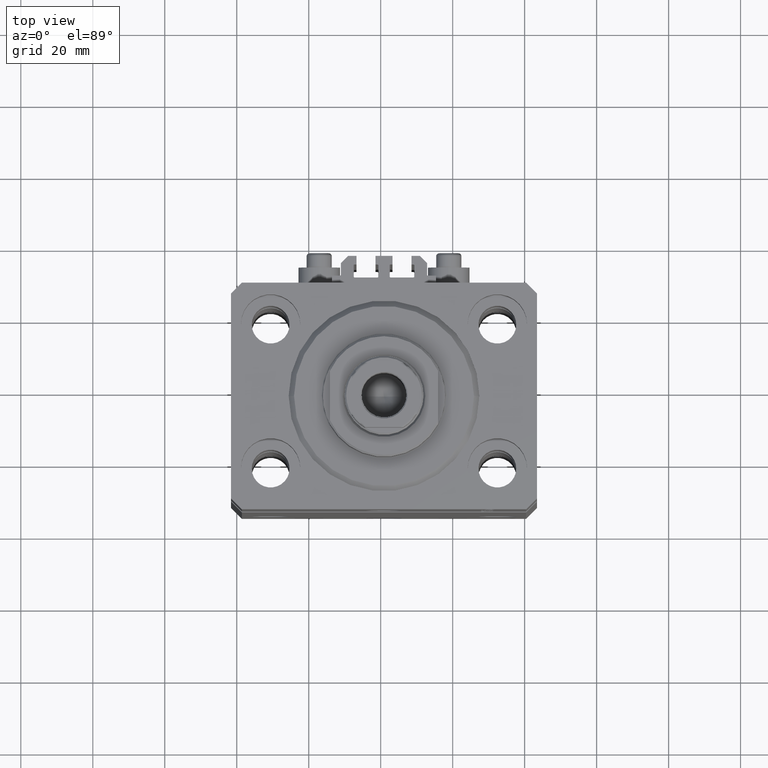
[diagram: clean part render]
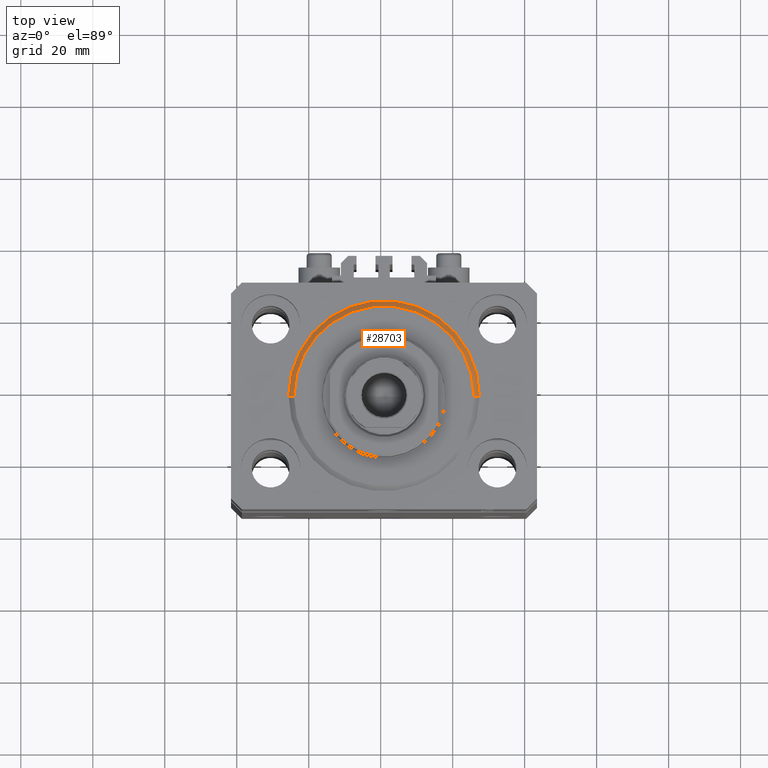
[diagram: same view with one face highlighted and labeled with its STEP entity id]
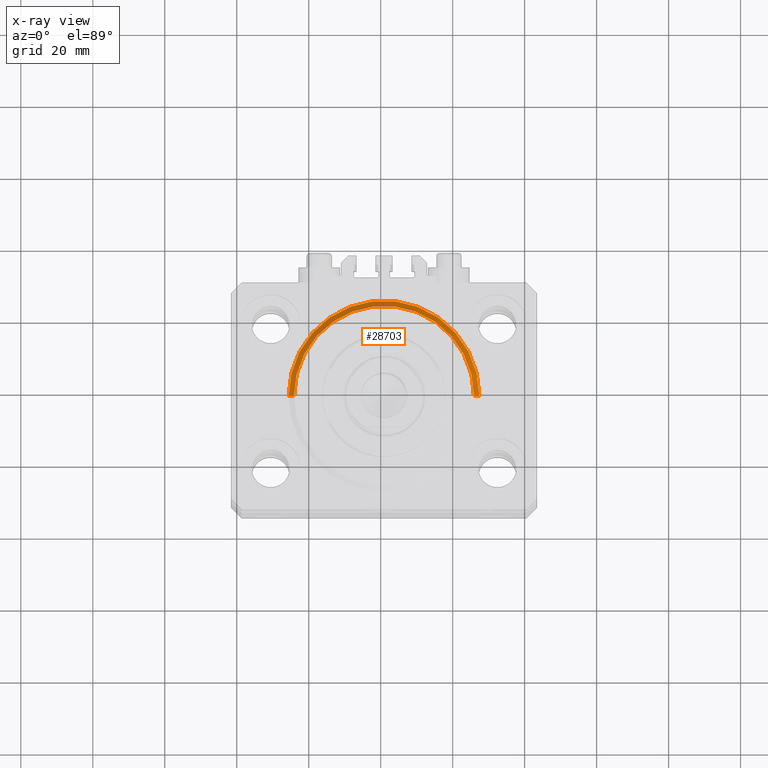
[diagram: x-ray of the same camera — body ghosted, the highlighted face saturated]
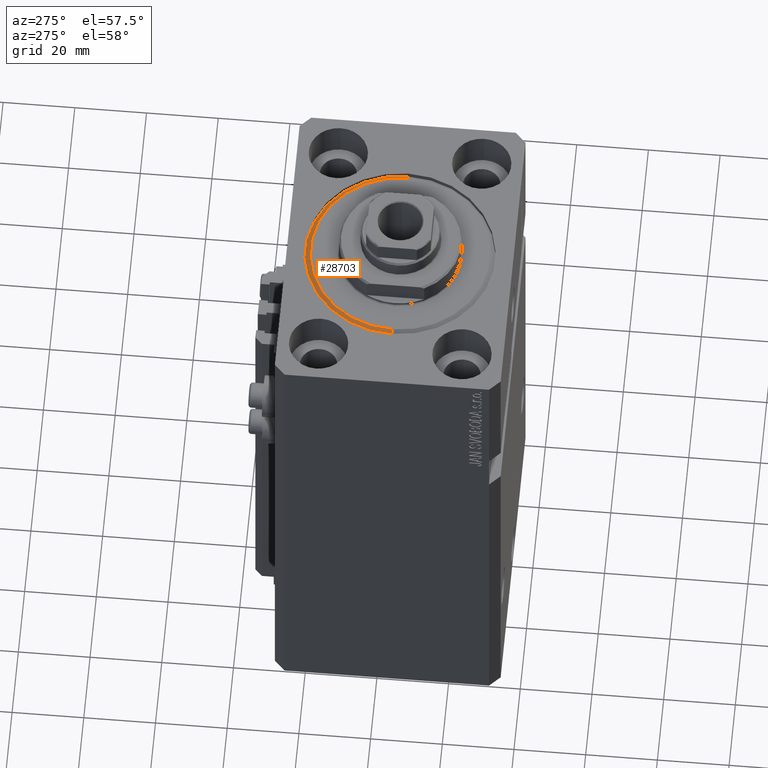
[diagram: same view with one face highlighted and labeled with its STEP entity id]
A machine part, top view. The second image highlights one B-rep face of the part: STEP entity #28703.
The next image is the same camera in x-ray: the body ghosted, the highlighted face saturated — about 0% of this face is hidden behind the body in this view.
A second angle (auxiliary view) of the same face is appended — the face is thin or edge-on in the first view.
In plain terms, the highlighted conical surface has half-angle 45 deg.
Its self-contained STEP definition (entity closure, byte-faithful):
#250 = CARTESIAN_POINT ( 'NONE',  ( 24.99999999999998224, 0.000000000000000000, 0.000000000000000000 ) ) ;
#376 = DIRECTION ( 'NONE',  ( -0.000000000000000000, -0.000000000000000000, 1.000000000000000000 ) ) ;
#675 = DIRECTION ( 'NONE',  ( 1.000000000000000000, 0.000000000000000000, 0.000000000000000000 ) ) ;
#3771 = DIRECTION ( 'NONE',  ( 1.000000000000000000, 0.000000000000000000, 0.000000000000000000 ) ) ;
#5955 = CARTESIAN_POINT ( 'NONE',  ( 26.50000000000000355, 3.245314017740486554E-15, 1.500000000000018652 ) ) ;
#6481 = CONICAL_SURFACE ( 'NONE', #35245, 26.50000000000000355, 0.7853981633974495002 ) ;
#6652 = AXIS2_PLACEMENT_3D ( 'NONE', #38151, #34496, #675 ) ;
#7325 = CIRCLE ( 'NONE', #43894, 26.50000000000000355 ) ;
#9260 = CARTESIAN_POINT ( 'NONE',  ( -26.50000000000000355, 0.000000000000000000, 1.500000000000018652 ) ) ;
#9722 = DIRECTION ( 'NONE',  ( 1.000000000000000000, 0.000000000000000000, 0.000000000000000000 ) ) ;
#10023 = EDGE_CURVE ( 'NONE', #29719, #40280, #44766, .T. ) ;
#10854 = LINE ( 'NONE', #29366, #15231 ) ;
#11211 = VERTEX_POINT ( 'NONE', #9260 ) ;
#14311 = CARTESIAN_POINT ( 'NONE',  ( 0.000000000000000000, 0.000000000000000000, 1.500000000000018652 ) ) ;
#14794 = DIRECTION ( 'NONE',  ( -0.7071067811865483499, 8.659560562354942719E-17, 0.7071067811865466846 ) ) ;
#15231 = VECTOR ( 'NONE', #25717, 1000.000000000000000 ) ;
#16851 = CARTESIAN_POINT ( 'NONE',  ( -24.99999999999998224, 3.153465507804433615E-15, 0.000000000000000000 ) ) ;
#23078 = ORIENTED_EDGE ( 'NONE', *, *, #23176, .T. ) ;
#23176 = EDGE_CURVE ( 'NONE', #29719, #11211, #33554, .T. ) ;
#25051 = DIRECTION ( 'NONE',  ( -0.000000000000000000, -0.000000000000000000, 1.000000000000000000 ) ) ;
#25717 = DIRECTION ( 'NONE',  ( 0.7071067811865483499, 0.000000000000000000, 0.7071067811865466846 ) ) ;
#28703 = ADVANCED_FACE ( 'NONE', ( #40783 ), #6481, .T. ) ;
#29366 = CARTESIAN_POINT ( 'NONE',  ( 26.50000000000000355, 0.000000000000000000, 1.500000000000018652 ) ) ;
#29719 = VERTEX_POINT ( 'NONE', #16851 ) ;
#29812 = CARTESIAN_POINT ( 'NONE',  ( 0.000000000000000000, 0.000000000000000000, 1.500000000000018652 ) ) ;
#30246 = VERTEX_POINT ( 'NONE', #5955 ) ;
#31597 = EDGE_CURVE ( 'NONE', #30246, #11211, #7325, .T. ) ;
#31960 = ORIENTED_EDGE ( 'NONE', *, *, #31597, .F. ) ;
#33554 = LINE ( 'NONE', #47442, #46728 ) ;
#34496 = DIRECTION ( 'NONE',  ( -0.000000000000000000, -0.000000000000000000, -1.000000000000000000 ) ) ;
#35245 = AXIS2_PLACEMENT_3D ( 'NONE', #29812, #376, #3771 ) ;
#37869 = EDGE_LOOP ( 'NONE', ( #47096, #23078, #31960, #39710 ) ) ;
#38151 = CARTESIAN_POINT ( 'NONE',  ( 0.000000000000000000, 0.000000000000000000, 0.000000000000000000 ) ) ;
#39710 = ORIENTED_EDGE ( 'NONE', *, *, #43727, .F. ) ;
#40280 = VERTEX_POINT ( 'NONE', #250 ) ;
#40783 = FACE_OUTER_BOUND ( 'NONE', #37869, .T. ) ;
#43727 = EDGE_CURVE ( 'NONE', #40280, #30246, #10854, .T. ) ;
#43894 = AXIS2_PLACEMENT_3D ( 'NONE', #14311, #25051, #9722 ) ;
#44766 = CIRCLE ( 'NONE', #6652, 24.99999999999998224 ) ;
#46728 = VECTOR ( 'NONE', #14794, 1000.000000000000000 ) ;
#47096 = ORIENTED_EDGE ( 'NONE', *, *, #10023, .F. ) ;
#47442 = CARTESIAN_POINT ( 'NONE',  ( -26.50000000000000355, 3.245314017740486554E-15, 1.500000000000018652 ) ) ;